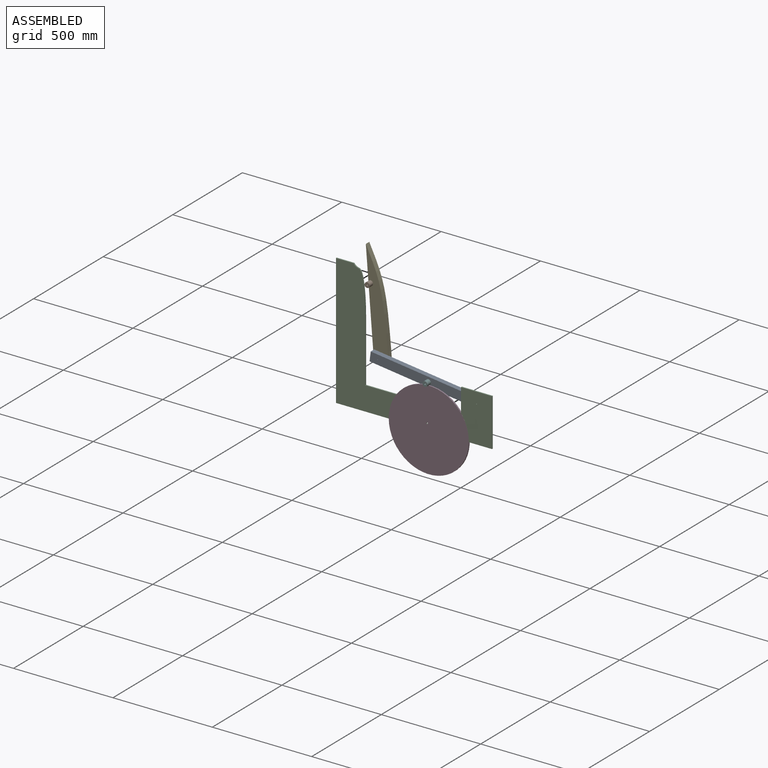
[diagram: assembled view]
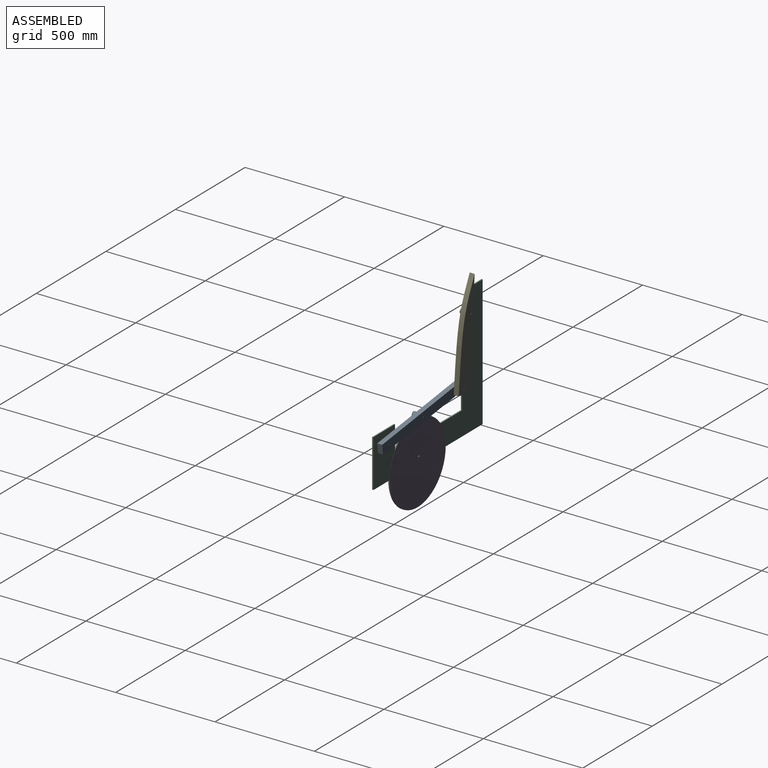
[diagram: assembled view, second angle]
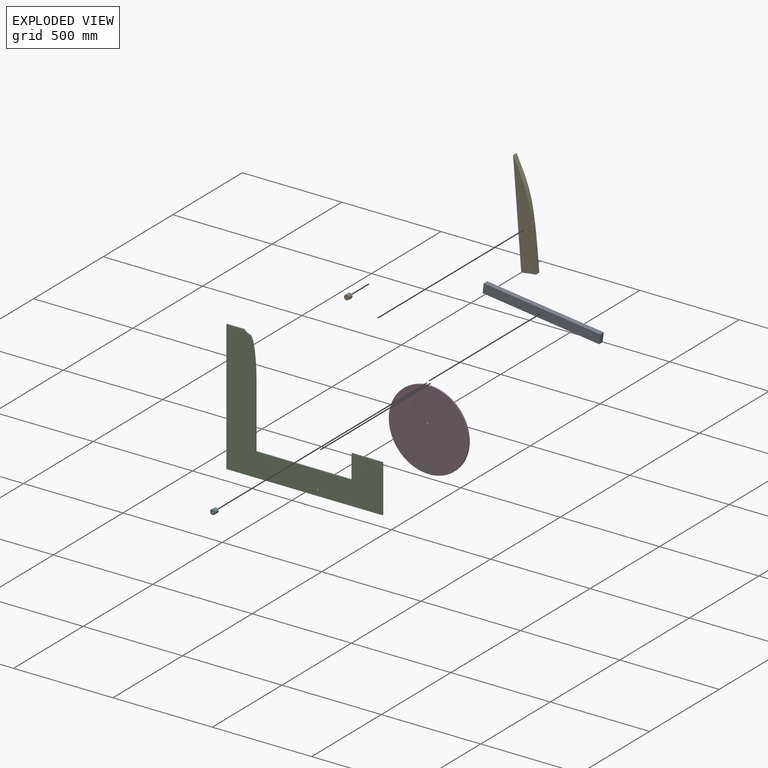
[diagram: exploded view]
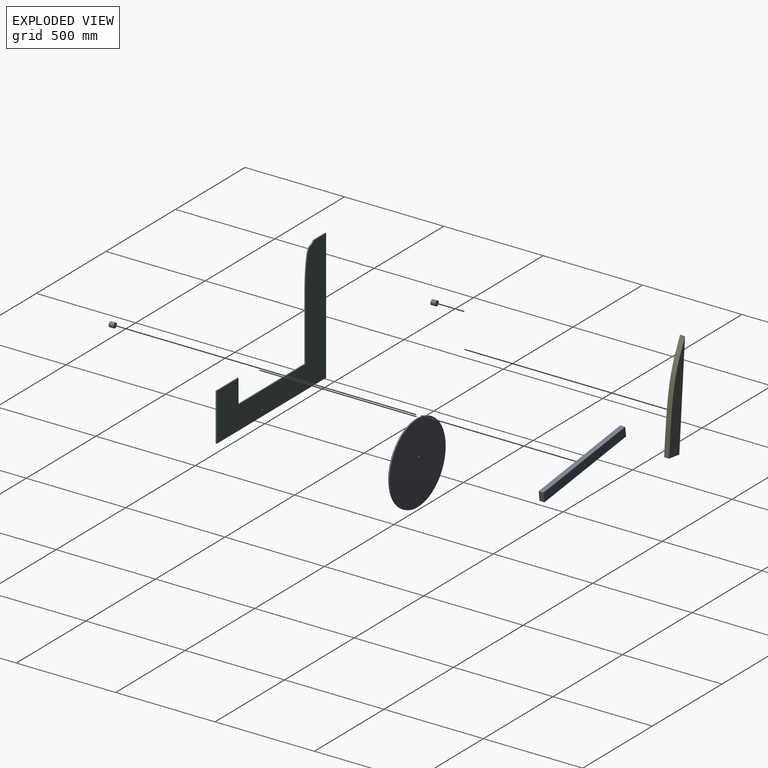
[diagram: exploded view, second angle]
ASSEMBLY  parts=6 mates=5
PART A: 9 faces, bbox 591.3x25x46.8 mm
  f0: plane 591.3x25mm, normal (0,0,1), area 14782.6mm2, adj f1,f5,f7,f8
  f1: plane 46.8x25mm, normal (-1,0,0), area 1170mm2, adj f0,f2,f7,f8
  f2: plane 591.3x25mm, normal (0,0,-1), area 14782.6mm2, adj f1,f5,f7,f8
  f3: cylinder r=2mm len=25mm, axis (0,1,0), area 314.2mm2, adj f7,f8
  f4: cylinder r=2mm len=25mm, axis (0,1,0), area 314.2mm2, adj f7,f8
  f5: plane 46.8x25mm, normal (1,0,0), area 1170mm2, adj f0,f2,f7,f8
  f6: cylinder r=2mm len=25mm, axis (0,1,0), area 314.2mm2, adj f7,f8
  f7: plane 591.3x46.8mm, normal (0,-1,0), area 27636mm2, adj f0,f1,f2,f3,f4,f5,f6
  f8: plane 591.3x46.8mm, normal (0,1,0), area 27636mm2, adj f0,f1,f2,f3,f4,f5,f6
PART B: 4 faces, bbox 25.4x25x25.4 mm
  f0: cylinder r=4mm len=25mm, axis (0,1,0), area 628.3mm2, adj f2,f3
  f1: cylinder r=12.7mm len=25.4mm, axis (0,1,0), area 1994.9mm2, adj f2,f3
  f2: plane 25.4x25.4mm, normal (0,-1,0), area 456.4mm2, adj f0,f1
  f3: plane 25.4x25.4mm, normal (0,1,0), area 456.4mm2, adj f0,f1
PART C: 13 faces, bbox 784.8x6x662.5 mm
  f0: plane 120.5x6mm, normal (-1,0,0), area 723mm2, adj f1,f8,f11,f12
  f1: plane 482.05x6mm, normal (0,0,1), area 2892.3mm2, adj f0,f2,f11,f12
  f2: plane 317.09x6mm, normal (1,0,0), area 1902.5mm2, adj f1,f3,f11,f12
  f3: extruded ~221.98x59.4mm, area 1469.1mm2, adj f2,f4,f11,f12
  f4: plane 87.85x6mm, normal (0,0,1), area 527.1mm2, adj f3,f5,f11,f12
  f5: plane 658.78x6mm, normal (-1,0,0), area 3952.7mm2, adj f4,f6,f11,f12
  f6: plane 784.82x6mm, normal (0,0,-1), area 4708.9mm2, adj f5,f7,f11,f12
  f7: plane 240.22x6mm, normal (1,0,0), area 1441.3mm2, adj f6,f8,f11,f12
  f8: plane 155.51x6mm, normal (0,0,1), area 933.1mm2, adj f0,f7,f11,f12
  f9: cylinder r=4mm len=8mm, axis (0,1,0), area 150.8mm2, adj f11,f12
  f10: cylinder r=2mm len=6mm, axis (0,1,0), area 75.4mm2, adj f11,f12
  f11: plane 784.82x662.49mm, normal (0,-1,0), area 189794.5mm2, adj f0,f1,f2,f3,f4,f5,f6,f7
  f12: plane 784.82x662.49mm, normal (0,1,0), area 189794.5mm2, adj f0,f1,f2,f3,f4,f5,f6,f7
PART D: 4 faces, bbox 402.9x7x402.9 mm
  f0: cylinder r=4mm len=8mm, axis (0,1,0), area 175.9mm2, adj f2,f3
  f1: cylinder r=201.44mm len=402.88mm, axis (0,1,0), area 8859.8mm2, adj f2,f3
  f2: plane 402.88x402.88mm, normal (0,-1,0), area 127430.3mm2, adj f0,f1
  f3: plane 402.88x402.88mm, normal (0,1,0), area 127430.3mm2, adj f0,f1
PART E: 8 faces, bbox 74x25x524.2 mm
  f0: plane 73.99x25mm, normal (0.04,0,-1), area 1851.5mm2, adj f1,f3,f6,f7
  f1: plane 43.51x25mm, normal (1,0,0), area 1087.7mm2, adj f0,f2,f6,f7
  f2: extruded ~477.42x73.99mm, area 12190.5mm2, adj f1,f3,f6,f7
  f3: plane 524.22x25mm, normal (-1,0,0), area 13105.6mm2, adj f0,f2,f6,f7
  f4: cylinder r=2mm len=25mm, axis (0,1,0), area 314.2mm2, adj f6,f7
  f5: cylinder r=2mm len=25mm, axis (0,1,0), area 314.2mm2, adj f6,f7
  f6: plane 524.22x73.99mm, normal (0,-1,0), area 29862mm2, adj f0,f1,f2,f3,f4,f5
  f7: plane 524.22x73.99mm, normal (0,1,0), area 29862mm2, adj f0,f1,f2,f3,f4,f5
PART F: same geometry as B
PLACE A rot(axis=(0,1,0),7.3deg) t=(44.49,31,517.52)mm
PLACE B rot(axis=(0,1,0),162.4deg) t=(206.55,31,451.29)mm
PLACE C t=(-8.94,6,445.56)mm fixed
PLACE D rot(axis=(0,1,0),163.5deg) t=(746.94,6.5,-142.98)mm
PLACE E rot(axis=(0,-1,0),4.5deg) t=(-34.29,56,502.81)mm
PLACE F rot(axis=(0,1,0),88.4deg) t=(385.94,6,271.17)mm
MATE revolute C.f10 <-> A.f3  axis (0,1,0) through (578.83,6,64.93)mm
MATE revolute F.f0 <-> A.f4  axis (0,1,0) through (332.71,6,96.5)mm
MATE revolute A.f6 <-> E.f4  axis (0,1,0) through (76.17,31,129.54)mm
MATE revolute D.f0 <-> C.f9  axis (0,1,0) through (330.69,3,-89.3)mm
MATE revolute E.f5 <-> B.f0  axis (0,-1,0) through (23.97,31,454.43)mm
